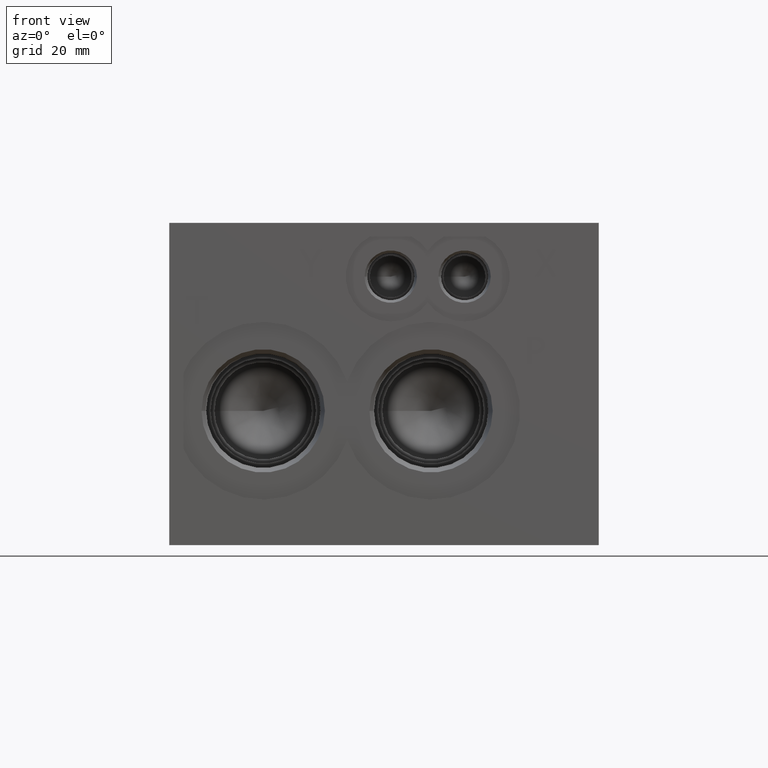
[diagram: clean part render]
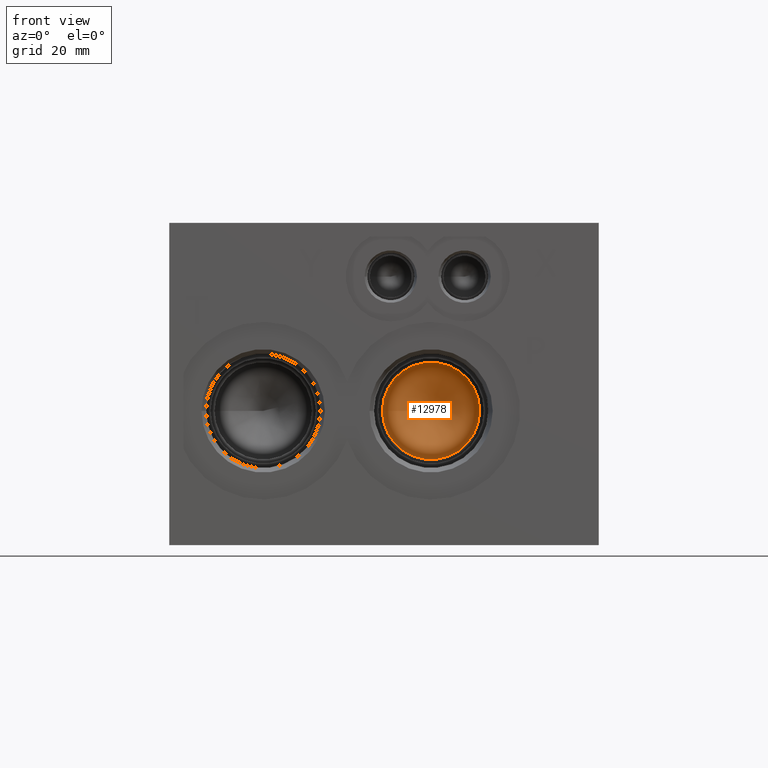
[diagram: same view with one face highlighted and labeled with its STEP entity id]
A machine part, front view. The second image highlights one B-rep face of the part: STEP entity #12978.
In plain terms, the highlighted conical surface has half-angle 60 deg.
Its self-contained STEP definition (entity closure, byte-faithful):
#108=CONICAL_SURFACE('',#13613,5.7531,1.0471975511966);
#244=CIRCLE('',#13614,11.5062);
#245=CIRCLE('',#13615,11.5062);
#1472=FACE_OUTER_BOUND('',#2199,.T.);
#2199=EDGE_LOOP('',(#11187,#11188,#11189,#11190));
#3496=LINE('',#21782,#4735);
#4735=VECTOR('',#16080,5.7531);
#6150=VERTEX_POINT('',#21778);
#6151=VERTEX_POINT('',#21779);
#6152=VERTEX_POINT('',#21781);
#7888=EDGE_CURVE('',#6150,#6151,#244,.T.);
#7889=EDGE_CURVE('',#6151,#6152,#3496,.T.);
#7890=EDGE_CURVE('',#6151,#6150,#245,.T.);
#11187=ORIENTED_EDGE('',*,*,#7888,.T.);
#11188=ORIENTED_EDGE('',*,*,#7889,.T.);
#11189=ORIENTED_EDGE('',*,*,#7889,.F.);
#11190=ORIENTED_EDGE('',*,*,#7890,.T.);
#12978=ADVANCED_FACE('',(#1472),#108,.F.);
#13613=AXIS2_PLACEMENT_3D('',#21777,#16076,#16077);
#13614=AXIS2_PLACEMENT_3D('',#21780,#16078,#16079);
#13615=AXIS2_PLACEMENT_3D('',#21783,#16081,#16082);
#16076=DIRECTION('center_axis',(0.,-1.,0.));
#16077=DIRECTION('ref_axis',(1.,0.,0.));
#16078=DIRECTION('center_axis',(0.,-1.,0.));
#16079=DIRECTION('ref_axis',(1.,0.,0.));
#16080=DIRECTION('',(0.866025403784439,0.5,1.06057523872491E-16));
#16081=DIRECTION('center_axis',(0.,-1.,0.));
#16082=DIRECTION('ref_axis',(1.,0.,0.));
#21777=CARTESIAN_POINT('Origin',(61.9252,34.1885438336748,31.75));
#21778=CARTESIAN_POINT('',(73.4314,30.86699,31.75));
#21779=CARTESIAN_POINT('',(50.419,30.86699,31.75));
#21780=CARTESIAN_POINT('Origin',(61.9252,30.86699,31.75));
#21781=CARTESIAN_POINT('',(61.9252,37.5100976673497,31.75));
#21782=CARTESIAN_POINT('',(56.1721,34.1885438336748,31.75));
#21783=CARTESIAN_POINT('Origin',(61.9252,30.86699,31.75));